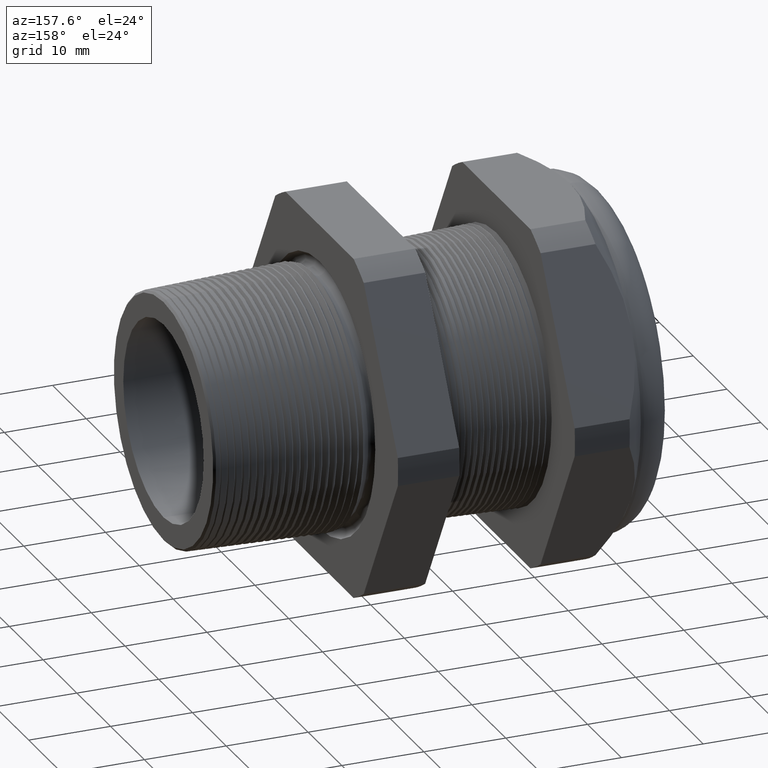
[diagram: clean part render]
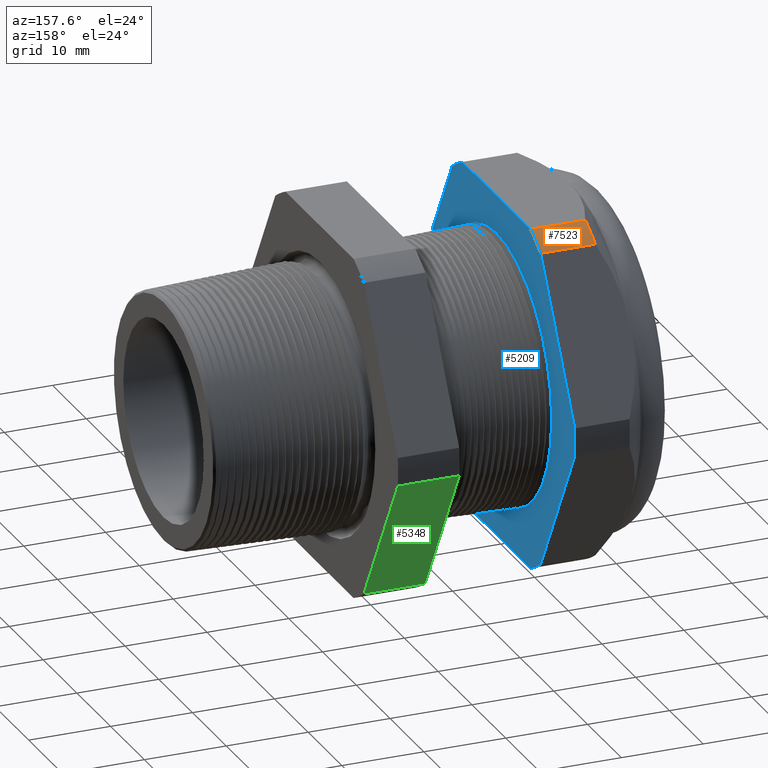
[diagram: same view with three faces highlighted in distinct colors, each labeled with its STEP entity id]
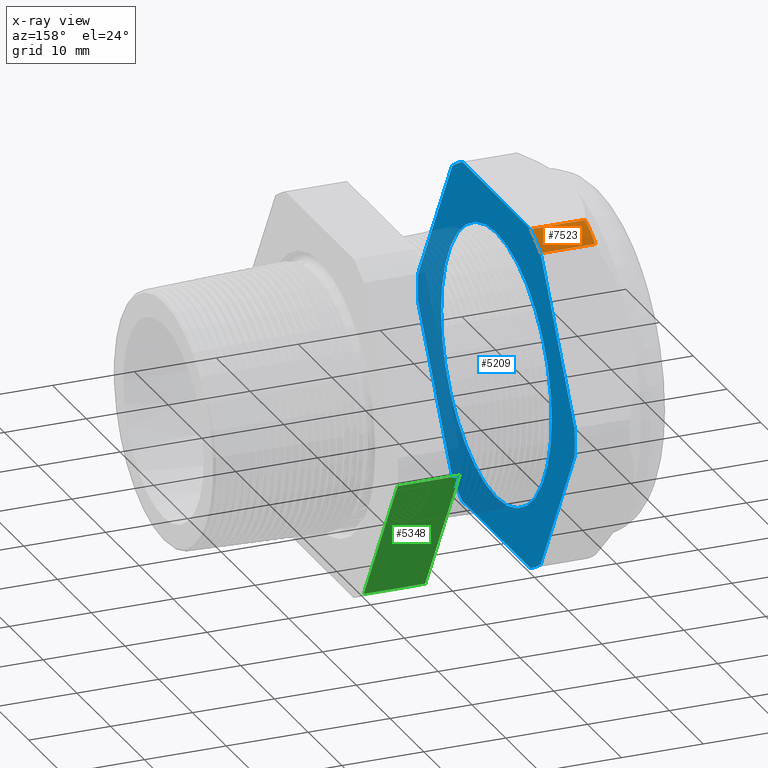
[diagram: x-ray of the same camera — body ghosted, the three highlighted faces saturated]
A machine part, auxiliary view with three faces highlighted in distinct colors.
The next image is the same camera in x-ray (body ghosted, the three faces saturated) — at least one of them is partly hidden behind the body in this view.
Their STEP definitions:

[orange] entity #7523 — the highlighted cylindrical surface (partial cylindrical patch) has radius 23.26 mm, axis along (-1, 0, 0).
#1238 = DIRECTION ( 'NONE',  ( -1.000000000000000000, 0.0000000000000000000, 0.0000000000000000000 ) ) ;
#1239 = VECTOR ( 'NONE', #1238, 39.37007874015748100 ) ;
#1240 = CARTESIAN_POINT ( 'NONE',  ( 0.4399999999999999500, 0.3974582525247153400, 0.8249999999999998400 ) ) ;
#1241 = LINE ( 'NONE', #1240, #1239 ) ;
#1319 = FACE_OUTER_BOUND ( 'NONE', #7509, .T. ) ;
#1337 = DIRECTION ( 'NONE',  ( -1.000000000000000000, 0.0000000000000000000, 0.0000000000000000000 ) ) ;
#1338 = VECTOR ( 'NONE', #1337, 39.37007874015748100 ) ;
#1339 = CARTESIAN_POINT ( 'NONE',  ( 0.4399999999999999500, 0.5157418318598044900, 0.7567089436301736000 ) ) ;
#1340 = LINE ( 'NONE', #1339, #1338 ) ;
#1341 = CARTESIAN_POINT ( 'NONE',  ( -1.160314960629921200, 0.5157418318598044900, 0.7567089436301736000 ) ) ;
#1342 = CARTESIAN_POINT ( 'NONE',  ( -1.423895669291338700, 0.5157418318598044900, 0.7567089436301736000 ) ) ;
#1378 = DIRECTION ( 'NONE',  ( 0.0000000000000000000, 0.0000000000000000000, 1.000000000000000000 ) ) ;
#1379 = DIRECTION ( 'NONE',  ( -1.000000000000000000, 0.0000000000000000000, 0.0000000000000000000 ) ) ;
#1380 = CARTESIAN_POINT ( 'NONE',  ( 0.4399999999999999500, 0.0000000000000000000, 0.0000000000000000000 ) ) ;
#1381 = AXIS2_PLACEMENT_3D ( 'NONE', #1380, #1379, #1378 ) ;
#1382 = CYLINDRICAL_SURFACE ( 'NONE', #1381, 0.9157500000000000600 ) ;
#2342 = ORIENTED_EDGE ( 'NONE', *, *, #7470, .F. ) ;
#2343 = EDGE_CURVE ( 'NONE', #7506, #6561, #2624, .T. ) ;
#2347 = ORIENTED_EDGE ( 'NONE', *, *, #2343, .F. ) ;
#2372 = EDGE_CURVE ( 'NONE', #7505, #6562, #2693, .T. ) ;
#2379 = ORIENTED_EDGE ( 'NONE', *, *, #2372, .T. ) ;
#2623 = AXIS2_PLACEMENT_3D ( 'NONE', #2690, #2689, #2688 ) ;
#2624 = CIRCLE ( 'NONE', #2623, 0.9157500000000000600 ) ;
#2688 = DIRECTION ( 'NONE',  ( 0.0000000000000000000, 0.0000000000000000000, -1.000000000000000000 ) ) ;
#2689 = DIRECTION ( 'NONE',  ( 1.000000000000000000, 0.0000000000000000000, 0.0000000000000000000 ) ) ;
#2690 = CARTESIAN_POINT ( 'NONE',  ( -1.160314960629921200, 0.0000000000000000000, 0.0000000000000000000 ) ) ;
#2691 = DIRECTION ( 'NONE',  ( 1.000000000000000000, 0.0000000000000000000, 0.0000000000000000000 ) ) ;
#2692 = AXIS2_PLACEMENT_3D ( 'NONE', #2699, #2691, #2753 ) ;
#2693 = CIRCLE ( 'NONE', #2692, 0.9157500000000000600 ) ;
#2699 = CARTESIAN_POINT ( 'NONE',  ( -1.423895669291338700, 0.0000000000000000000, 0.0000000000000000000 ) ) ;
#2753 = DIRECTION ( 'NONE',  ( 0.0000000000000000000, 0.0000000000000000000, -1.000000000000000000 ) ) ;
#6561 = VERTEX_POINT ( 'NONE', #6998 ) ;
#6562 = VERTEX_POINT ( 'NONE', #6997 ) ;
#6997 = CARTESIAN_POINT ( 'NONE',  ( -1.423895669291338700, 0.3974582525247153400, 0.8249999999999998400 ) ) ;
#6998 = CARTESIAN_POINT ( 'NONE',  ( -1.160314960629921200, 0.3974582525247153400, 0.8249999999999998400 ) ) ;
#7470 = EDGE_CURVE ( 'NONE', #6561, #6562, #1241, .T. ) ;
#7505 = VERTEX_POINT ( 'NONE', #1342 ) ;
#7506 = VERTEX_POINT ( 'NONE', #1341 ) ;
#7507 = ORIENTED_EDGE ( 'NONE', *, *, #7508, .T. ) ;
#7508 = EDGE_CURVE ( 'NONE', #7506, #7505, #1340, .T. ) ;
#7509 = EDGE_LOOP ( 'NONE', ( #7507, #2379, #2342, #2347 ) ) ;
#7523 = ADVANCED_FACE ( 'NONE', ( #1319 ), #1382, .T. ) ;

[blue] entity #5209 — the highlighted planar face has unit normal (1, 0, 0).
#84 = CARTESIAN_POINT ( 'NONE',  ( -1.160314960629921500, 0.0000000000000000000, 0.6449999999999999100 ) ) ;
#97 = CARTESIAN_POINT ( 'NONE',  ( -1.160314960629921200, -0.3974582525247148400, -0.8250000000000000700 ) ) ;
#135 = CARTESIAN_POINT ( 'NONE',  ( -1.160314960629921500, 7.898971854500428000E-017, -0.6449999999999999100 ) ) ;
#140 = DIRECTION ( 'NONE',  ( 0.0000000000000000000, 0.0000000000000000000, -1.000000000000000000 ) ) ;
#141 = DIRECTION ( 'NONE',  ( 1.000000000000000000, 0.0000000000000000000, 0.0000000000000000000 ) ) ;
#142 = CARTESIAN_POINT ( 'NONE',  ( -1.160314960629921500, 0.0000000000000000000, 0.0000000000000000000 ) ) ;
#143 = AXIS2_PLACEMENT_3D ( 'NONE', #142, #141, #140 ) ;
#144 = CIRCLE ( 'NONE', #143, 0.6449999999999999100 ) ;
#158 = DIRECTION ( 'NONE',  ( 0.0000000000000000000, 0.0000000000000000000, -1.000000000000000000 ) ) ;
#159 = DIRECTION ( 'NONE',  ( 1.000000000000000000, 0.0000000000000000000, 0.0000000000000000000 ) ) ;
#160 = CARTESIAN_POINT ( 'NONE',  ( -1.160314960629921200, 0.0000000000000000000, 0.0000000000000000000 ) ) ;
#161 = AXIS2_PLACEMENT_3D ( 'NONE', #160, #159, #158 ) ;
#162 = CIRCLE ( 'NONE', #161, 0.9157500000000000600 ) ;
#221 = DIRECTION ( 'NONE',  ( 0.0000000000000000000, 1.000000000000000000, 0.0000000000000000000 ) ) ;
#222 = VECTOR ( 'NONE', #221, 39.37007874015748100 ) ;
#223 = CARTESIAN_POINT ( 'NONE',  ( -1.160314960629921200, 0.6449999999999999100, -0.8250000000000000700 ) ) ;
#229 = LINE ( 'NONE', #223, #222 ) ;
#237 = CARTESIAN_POINT ( 'NONE',  ( -1.160314960629921200, -0.5157418318598037100, -0.7567089436301741600 ) ) ;
#371 = CARTESIAN_POINT ( 'NONE',  ( -1.160314960629921200, 0.9132000843845194900, -0.06829105636982668600 ) ) ;
#372 = CARTESIAN_POINT ( 'NONE',  ( -1.160314960629921200, 0.3974582525247150100, -0.8249999999999999600 ) ) ;
#425 = DIRECTION ( 'NONE',  ( 0.0000000000000000000, 0.4999999999999998300, 0.8660254037844386000 ) ) ;
#426 = VECTOR ( 'NONE', #425, 39.37007874015748900 ) ;
#427 = CARTESIAN_POINT ( 'NONE',  ( -1.160314960629921200, 0.8757209581221621100, -0.1332068072795186400 ) ) ;
#428 = LINE ( 'NONE', #427, #426 ) ;
#429 = CARTESIAN_POINT ( 'NONE',  ( -1.160314960629921200, 0.5157418318598049300, -0.7567089436301733800 ) ) ;
#463 = CARTESIAN_POINT ( 'NONE',  ( -1.160314960629921200, -0.9132000843845193800, -0.06829105636982593700 ) ) ;
#495 = DIRECTION ( 'NONE',  ( 0.0000000000000000000, 0.0000000000000000000, -1.000000000000000000 ) ) ;
#496 = DIRECTION ( 'NONE',  ( 1.000000000000000000, 0.0000000000000000000, 0.0000000000000000000 ) ) ;
#497 = CARTESIAN_POINT ( 'NONE',  ( -1.160314960629921200, 0.0000000000000000000, 0.0000000000000000000 ) ) ;
#498 = AXIS2_PLACEMENT_3D ( 'NONE', #497, #496, #495 ) ;
#499 = CIRCLE ( 'NONE', #498, 0.9157500000000000600 ) ;
#547 = DIRECTION ( 'NONE',  ( 0.0000000000000000000, 0.0000000000000000000, -1.000000000000000000 ) ) ;
#548 = DIRECTION ( 'NONE',  ( 1.000000000000000000, 0.0000000000000000000, 0.0000000000000000000 ) ) ;
#549 = CARTESIAN_POINT ( 'NONE',  ( -1.160314960629921200, 0.0000000000000000000, 0.0000000000000000000 ) ) ;
#550 = AXIS2_PLACEMENT_3D ( 'NONE', #549, #548, #547 ) ;
#551 = CIRCLE ( 'NONE', #550, 0.9157500000000000600 ) ;
#1243 = CARTESIAN_POINT ( 'NONE',  ( -1.160314960629921200, -0.3974582525247157800, 0.8249999999999995100 ) ) ;
#1254 = CIRCLE ( 'NONE', #1318, 0.9157500000000000600 ) ;
#1315 = DIRECTION ( 'NONE',  ( 0.0000000000000000000, 0.0000000000000000000, -1.000000000000000000 ) ) ;
#1316 = DIRECTION ( 'NONE',  ( 1.000000000000000000, 0.0000000000000000000, 0.0000000000000000000 ) ) ;
#1317 = CARTESIAN_POINT ( 'NONE',  ( -1.160314960629921200, 0.0000000000000000000, 0.0000000000000000000 ) ) ;
#1318 = AXIS2_PLACEMENT_3D ( 'NONE', #1317, #1316, #1315 ) ;
#1325 = DIRECTION ( 'NONE',  ( 0.0000000000000000000, -1.000000000000000000, 0.0000000000000000000 ) ) ;
#1326 = VECTOR ( 'NONE', #1325, 39.37007874015748100 ) ;
#1327 = CARTESIAN_POINT ( 'NONE',  ( -1.160314960629921200, 0.6449999999999999100, 0.8249999999999998400 ) ) ;
#1328 = LINE ( 'NONE', #1327, #1326 ) ;
#1341 = CARTESIAN_POINT ( 'NONE',  ( -1.160314960629921200, 0.5157418318598044900, 0.7567089436301736000 ) ) ;
#2326 = VERTEX_POINT ( 'NONE', #2620 ) ;
#2343 = EDGE_CURVE ( 'NONE', #7506, #6561, #2624, .T. ) ;
#2386 = EDGE_CURVE ( 'NONE', #6786, #2326, #2734, .T. ) ;
#2620 = CARTESIAN_POINT ( 'NONE',  ( -1.160314960629921200, 0.9132000843845192700, 0.06829105636982647800 ) ) ;
#2623 = AXIS2_PLACEMENT_3D ( 'NONE', #2690, #2689, #2688 ) ;
#2624 = CIRCLE ( 'NONE', #2623, 0.9157500000000000600 ) ;
#2688 = DIRECTION ( 'NONE',  ( 0.0000000000000000000, 0.0000000000000000000, -1.000000000000000000 ) ) ;
#2689 = DIRECTION ( 'NONE',  ( 1.000000000000000000, 0.0000000000000000000, 0.0000000000000000000 ) ) ;
#2690 = CARTESIAN_POINT ( 'NONE',  ( -1.160314960629921200, 0.0000000000000000000, 0.0000000000000000000 ) ) ;
#2730 = DIRECTION ( 'NONE',  ( 0.0000000000000000000, 0.0000000000000000000, -1.000000000000000000 ) ) ;
#2731 = DIRECTION ( 'NONE',  ( 1.000000000000000000, 0.0000000000000000000, 0.0000000000000000000 ) ) ;
#2732 = CARTESIAN_POINT ( 'NONE',  ( -1.160314960629921200, 0.0000000000000000000, 0.0000000000000000000 ) ) ;
#2733 = AXIS2_PLACEMENT_3D ( 'NONE', #2732, #2731, #2730 ) ;
#2734 = CIRCLE ( 'NONE', #2733, 0.9157499999999999500 ) ;
#3578 = DIRECTION ( 'NONE',  ( 0.0000000000000000000, -0.4999999999999998300, 0.8660254037844386000 ) ) ;
#3579 = VECTOR ( 'NONE', #3578, 39.37007874015748900 ) ;
#3586 = CARTESIAN_POINT ( 'NONE',  ( -1.160314960629921200, 0.8757209581221618900, 0.1332068072795185300 ) ) ;
#3587 = LINE ( 'NONE', #3586, #3579 ) ;
#3772 = DIRECTION ( 'NONE',  ( 0.0000000000000000000, 0.0000000000000000000, -1.000000000000000000 ) ) ;
#3773 = DIRECTION ( 'NONE',  ( 1.000000000000000000, 0.0000000000000000000, 0.0000000000000000000 ) ) ;
#3774 = CARTESIAN_POINT ( 'NONE',  ( -1.160314960629921500, 0.0000000000000000000, 0.0000000000000000000 ) ) ;
#3775 = AXIS2_PLACEMENT_3D ( 'NONE', #3774, #3773, #3772 ) ;
#3776 = CIRCLE ( 'NONE', #3775, 0.6449999999999999100 ) ;
#3777 = DIRECTION ( 'NONE',  ( 0.0000000000000000000, 0.0000000000000000000, -1.000000000000000000 ) ) ;
#3778 = DIRECTION ( 'NONE',  ( 1.000000000000000000, 0.0000000000000000000, 0.0000000000000000000 ) ) ;
#3779 = CARTESIAN_POINT ( 'NONE',  ( -1.160314960629921200, 0.6449999999999999100, 0.0000000000000000000 ) ) ;
#3780 = AXIS2_PLACEMENT_3D ( 'NONE', #3779, #3778, #3777 ) ;
#3781 = PLANE ( 'NONE',  #3780 ) ;
#3782 = FACE_OUTER_BOUND ( 'NONE', #5214, .T. ) ;
#3783 = FACE_BOUND ( 'NONE', #5210, .T. ) ;
#5111 = EDGE_CURVE ( 'NONE', #2326, #7506, #3587, .T. ) ;
#5198 = ORIENTED_EDGE ( 'NONE', *, *, #7086, .T. ) ;
#5199 = ORIENTED_EDGE ( 'NONE', *, *, #6531, .T. ) ;
#5200 = ORIENTED_EDGE ( 'NONE', *, *, #7081, .T. ) ;
#5201 = ORIENTED_EDGE ( 'NONE', *, *, #6707, .T. ) ;
#5202 = ORIENTED_EDGE ( 'NONE', *, *, #6672, .T. ) ;
#5209 = ADVANCED_FACE ( 'NONE', ( #3783, #3782 ), #3781, .T. ) ;
#5210 = EDGE_LOOP ( 'NONE', ( #5211, #5213 ) ) ;
#5211 = ORIENTED_EDGE ( 'NONE', *, *, #5212, .F. ) ;
#5212 = EDGE_CURVE ( 'NONE', #6641, #6649, #3776, .T. ) ;
#5213 = ORIENTED_EDGE ( 'NONE', *, *, #6643, .F. ) ;
#5214 = EDGE_LOOP ( 'NONE', ( #5215, #5216, #5217, #5275, #5276, #5277, #5278, #5198, #5199, #5200, #5201, #5202 ) ) ;
#5215 = ORIENTED_EDGE ( 'NONE', *, *, #6790, .T. ) ;
#5216 = ORIENTED_EDGE ( 'NONE', *, *, #2386, .T. ) ;
#5217 = ORIENTED_EDGE ( 'NONE', *, *, #5111, .T. ) ;
#5275 = ORIENTED_EDGE ( 'NONE', *, *, #2343, .T. ) ;
#5276 = ORIENTED_EDGE ( 'NONE', *, *, #7520, .T. ) ;
#5277 = ORIENTED_EDGE ( 'NONE', *, *, #7485, .T. ) ;
#5278 = ORIENTED_EDGE ( 'NONE', *, *, #6537, .T. ) ;
#6527 = VERTEX_POINT ( 'NONE', #6902 ) ;
#6531 = EDGE_CURVE ( 'NONE', #6814, #6694, #6895, .T. ) ;
#6537 = EDGE_CURVE ( 'NONE', #6560, #6527, #6945, .T. ) ;
#6560 = VERTEX_POINT ( 'NONE', #6999 ) ;
#6561 = VERTEX_POINT ( 'NONE', #6998 ) ;
#6634 = VERTEX_POINT ( 'NONE', #97 ) ;
#6641 = VERTEX_POINT ( 'NONE', #84 ) ;
#6643 = EDGE_CURVE ( 'NONE', #6649, #6641, #144, .T. ) ;
#6649 = VERTEX_POINT ( 'NONE', #135 ) ;
#6672 = EDGE_CURVE ( 'NONE', #6785, #6789, #162, .T. ) ;
#6694 = VERTEX_POINT ( 'NONE', #237 ) ;
#6707 = EDGE_CURVE ( 'NONE', #6634, #6785, #229, .T. ) ;
#6785 = VERTEX_POINT ( 'NONE', #372 ) ;
#6786 = VERTEX_POINT ( 'NONE', #371 ) ;
#6789 = VERTEX_POINT ( 'NONE', #429 ) ;
#6790 = EDGE_CURVE ( 'NONE', #6789, #6786, #428, .T. ) ;
#6814 = VERTEX_POINT ( 'NONE', #463 ) ;
#6892 = DIRECTION ( 'NONE',  ( 0.0000000000000000000, 0.5000000000000001100, -0.8660254037844384900 ) ) ;
#6893 = VECTOR ( 'NONE', #6892, 39.37007874015748900 ) ;
#6894 = CARTESIAN_POINT ( 'NONE',  ( -1.160314960629921200, -0.5532209581221616500, -0.6917931927204816800 ) ) ;
#6895 = LINE ( 'NONE', #6894, #6893 ) ;
#6902 = CARTESIAN_POINT ( 'NONE',  ( -1.160314960629921200, -0.9132000843845194900, 0.06829105636982570100 ) ) ;
#6942 = DIRECTION ( 'NONE',  ( 0.0000000000000000000, -0.4999999999999997200, -0.8660254037844388200 ) ) ;
#6943 = VECTOR ( 'NONE', #6942, 39.37007874015748900 ) ;
#6944 = CARTESIAN_POINT ( 'NONE',  ( -1.160314960629921200, -0.5532209581221623200, 0.6917931927204812300 ) ) ;
#6945 = LINE ( 'NONE', #6944, #6943 ) ;
#6998 = CARTESIAN_POINT ( 'NONE',  ( -1.160314960629921200, 0.3974582525247153400, 0.8249999999999998400 ) ) ;
#6999 = CARTESIAN_POINT ( 'NONE',  ( -1.160314960629921200, -0.5157418318598044900, 0.7567089436301736000 ) ) ;
#7081 = EDGE_CURVE ( 'NONE', #6694, #6634, #499, .T. ) ;
#7086 = EDGE_CURVE ( 'NONE', #6527, #6814, #551, .T. ) ;
#7466 = VERTEX_POINT ( 'NONE', #1243 ) ;
#7485 = EDGE_CURVE ( 'NONE', #7466, #6560, #1254, .T. ) ;
#7506 = VERTEX_POINT ( 'NONE', #1341 ) ;
#7520 = EDGE_CURVE ( 'NONE', #6561, #7466, #1328, .T. ) ;

[green] entity #5348 — the highlighted planar face has unit normal (0, 0.866, -0.5).
#3600 = CARTESIAN_POINT ( 'NONE',  ( -0.3100000000000000000, 0.9132000843845194900, -0.06829105636982671400 ) ) ;
#3601 = CARTESIAN_POINT ( 'NONE',  ( -0.3100000000000000000, 0.5157418318598049300, -0.7567089436301733800 ) ) ;
#3602 = DIRECTION ( 'NONE',  ( 0.0000000000000000000, 0.4999999999999998300, 0.8660254037844386000 ) ) ;
#3603 = VECTOR ( 'NONE', #3602, 39.37007874015748900 ) ;
#3604 = CARTESIAN_POINT ( 'NONE',  ( -0.3100000000000000000, 1.126970958122162100, 0.3019709581221616800 ) ) ;
#3605 = LINE ( 'NONE', #3604, #3603 ) ;
#3700 = CARTESIAN_POINT ( 'NONE',  ( -0.6052755905511809600, 0.5157418318598050400, -0.7567089436301733800 ) ) ;
#3701 = DIRECTION ( 'NONE',  ( 0.0000000000000000000, -0.4999999999999998300, -0.8660254037844386000 ) ) ;
#3702 = VECTOR ( 'NONE', #3701, 39.37007874015748900 ) ;
#3703 = CARTESIAN_POINT ( 'NONE',  ( -0.6052755905511809600, 1.126970958122162100, 0.3019709581221616800 ) ) ;
#3704 = LINE ( 'NONE', #3703, #3702 ) ;
#3705 = CARTESIAN_POINT ( 'NONE',  ( -0.6052755905511810800, 0.9132000843845193800, -0.06829105636982670000 ) ) ;
#3888 = DIRECTION ( 'NONE',  ( -1.000000000000000000, 0.0000000000000000000, 0.0000000000000000000 ) ) ;
#3889 = VECTOR ( 'NONE', #3888, 39.37007874015748100 ) ;
#3890 = CARTESIAN_POINT ( 'NONE',  ( 0.4399999999999999500, 0.9132000843845193800, -0.06829105636982670000 ) ) ;
#3891 = LINE ( 'NONE', #3890, #3889 ) ;
#3979 = DIRECTION ( 'NONE',  ( 0.0000000000000000000, 0.4999999999999998300, 0.8660254037844386000 ) ) ;
#3980 = DIRECTION ( 'NONE',  ( 0.0000000000000000000, 0.8660254037844387100, -0.4999999999999998900 ) ) ;
#3981 = CARTESIAN_POINT ( 'NONE',  ( 0.4399999999999999500, 0.9132000843845193800, -0.06829105636982670000 ) ) ;
#3982 = AXIS2_PLACEMENT_3D ( 'NONE', #3981, #3980, #3979 ) ;
#3983 = PLANE ( 'NONE',  #3982 ) ;
#3984 = FACE_OUTER_BOUND ( 'NONE', #5349, .T. ) ;
#3985 = DIRECTION ( 'NONE',  ( -1.000000000000000000, 0.0000000000000000000, 0.0000000000000000000 ) ) ;
#3986 = VECTOR ( 'NONE', #3985, 39.37007874015748100 ) ;
#3987 = CARTESIAN_POINT ( 'NONE',  ( 0.4399999999999999500, 0.5157418318598049300, -0.7567089436301733800 ) ) ;
#3992 = LINE ( 'NONE', #3987, #3986 ) ;
#5099 = EDGE_CURVE ( 'NONE', #5100, #5101, #3605, .T. ) ;
#5100 = VERTEX_POINT ( 'NONE', #3601 ) ;
#5101 = VERTEX_POINT ( 'NONE', #3600 ) ;
#5172 = VERTEX_POINT ( 'NONE', #3705 ) ;
#5174 = EDGE_CURVE ( 'NONE', #5172, #5175, #3704, .T. ) ;
#5175 = VERTEX_POINT ( 'NONE', #3700 ) ;
#5264 = EDGE_CURVE ( 'NONE', #5101, #5172, #3891, .T. ) ;
#5346 = EDGE_CURVE ( 'NONE', #5100, #5175, #3992, .T. ) ;
#5348 = ADVANCED_FACE ( 'NONE', ( #3984 ), #3983, .T. ) ;
#5349 = EDGE_LOOP ( 'NONE', ( #5350, #5351, #5352, #5353 ) ) ;
#5350 = ORIENTED_EDGE ( 'NONE', *, *, #5346, .T. ) ;
#5351 = ORIENTED_EDGE ( 'NONE', *, *, #5174, .F. ) ;
#5352 = ORIENTED_EDGE ( 'NONE', *, *, #5264, .F. ) ;
#5353 = ORIENTED_EDGE ( 'NONE', *, *, #5099, .F. ) ;